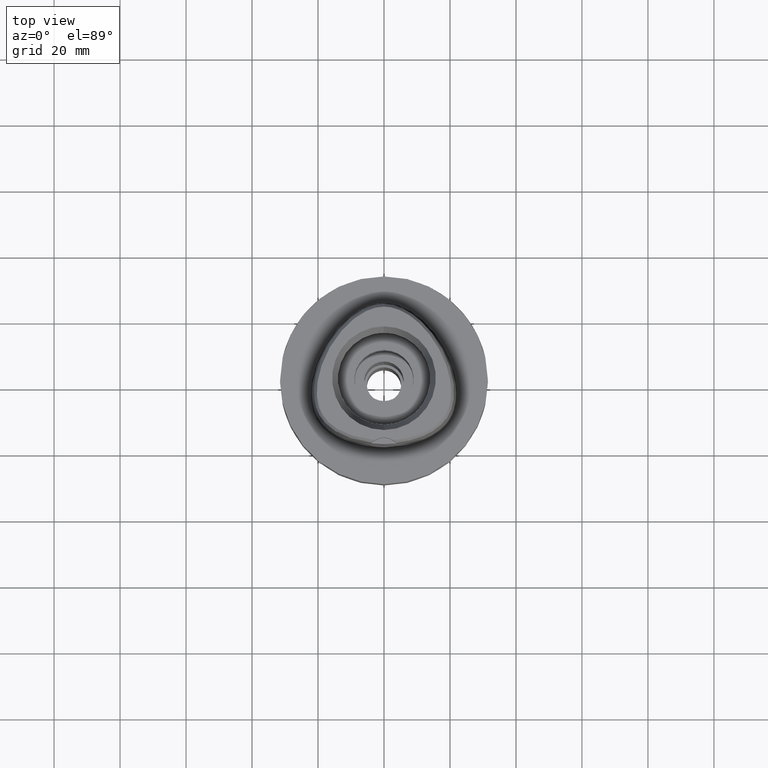
[diagram: clean part render]
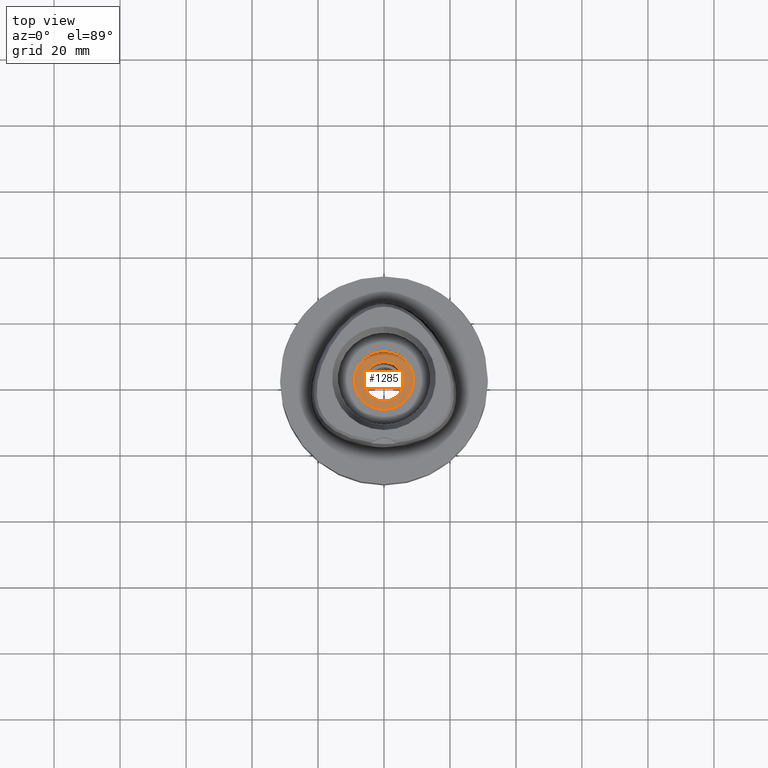
[diagram: same view with one face highlighted and labeled with its STEP entity id]
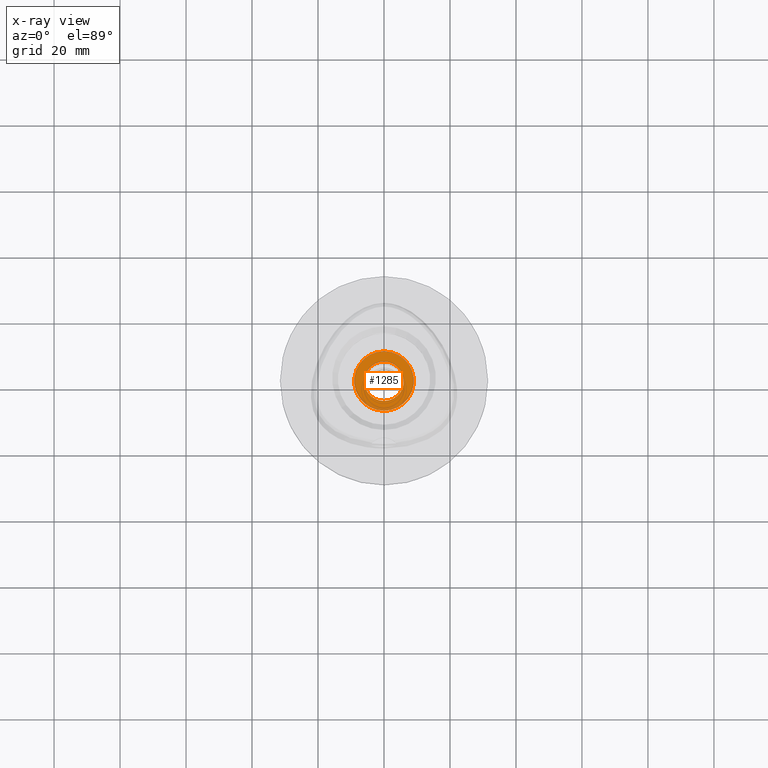
[diagram: x-ray of the same camera — body ghosted, the highlighted face saturated]
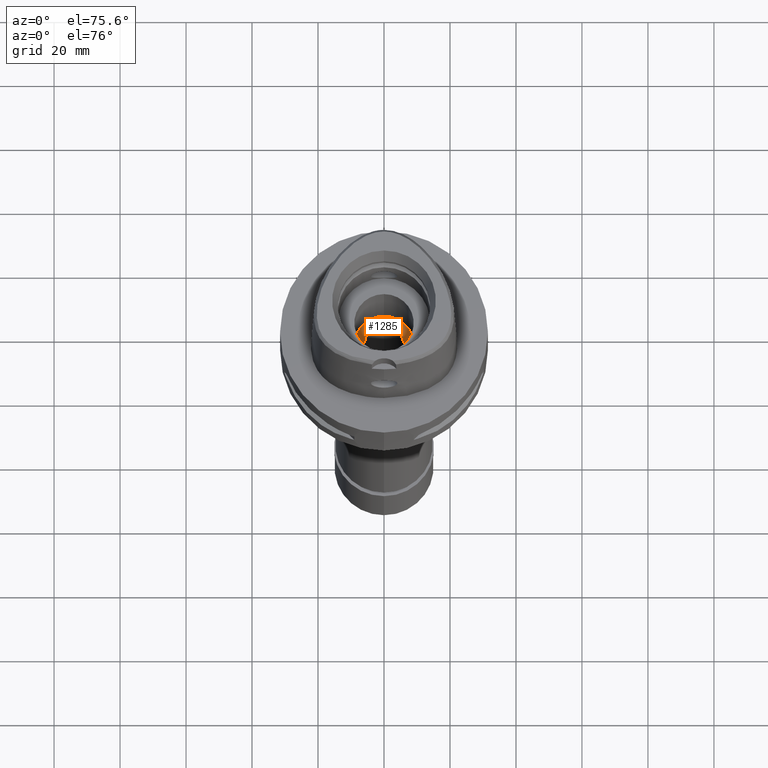
[diagram: same view with one face highlighted and labeled with its STEP entity id]
A machine part, top view. The second image highlights one B-rep face of the part: STEP entity #1285.
The next image is the same camera in x-ray: the body ghosted, the highlighted face saturated — about 6% of this face is hidden behind the body in this view.
A second angle (auxiliary view) of the same face is appended — the face is thin or edge-on in the first view.
In plain terms, the highlighted planar face has unit normal (0, 0, -1).
Its self-contained STEP definition (entity closure, byte-faithful):
#37 = FACE_BOUND ( 'NONE', #3934, .T. ) ;
#150 = CARTESIAN_POINT ( 'NONE',  ( 0.0000000000000000000, 0.0000000000000000000, -16.00000000000000000 ) ) ;
#389 = VERTEX_POINT ( 'NONE', #2401 ) ;
#481 = AXIS2_PLACEMENT_3D ( 'NONE', #1817, #3390, #4200 ) ;
#616 = CARTESIAN_POINT ( 'NONE',  ( 0.0000000000000000000, 0.0000000000000000000, -16.00000000000000000 ) ) ;
#747 = EDGE_CURVE ( 'NONE', #2585, #2912, #1898, .T. ) ;
#768 = DIRECTION ( 'NONE',  ( 0.0000000000000000000, 0.0000000000000000000, -1.000000000000000000 ) ) ;
#838 = DIRECTION ( 'NONE',  ( 0.0000000000000000000, -1.000000000000000000, 0.0000000000000000000 ) ) ;
#877 = AXIS2_PLACEMENT_3D ( 'NONE', #2788, #3191, #838 ) ;
#1184 = EDGE_LOOP ( 'NONE', ( #4132, #2293 ) ) ;
#1226 = DIRECTION ( 'NONE',  ( 0.0000000000000000000, -1.000000000000000000, 0.0000000000000000000 ) ) ;
#1253 = CARTESIAN_POINT ( 'NONE',  ( 0.0000000000000000000, 1.028703311283999754E-14, -16.00000000000000000 ) ) ;
#1285 = ADVANCED_FACE ( 'NONE', ( #2728, #37 ), #3531, .F. ) ;
#1751 = ORIENTED_EDGE ( 'NONE', *, *, #4566, .F. ) ;
#1759 = EDGE_CURVE ( 'NONE', #2016, #389, #2545, .T. ) ;
#1817 = CARTESIAN_POINT ( 'NONE',  ( 0.0000000000000000000, 1.319556926080999853E-14, -16.00000000000000000 ) ) ;
#1898 = CIRCLE ( 'NONE', #4476, 9.000000000000000000 ) ;
#1928 = DIRECTION ( 'NONE',  ( 0.0000000000000000000, -1.000000000000000000, 0.0000000000000000000 ) ) ;
#2016 = VERTEX_POINT ( 'NONE', #3480 ) ;
#2293 = ORIENTED_EDGE ( 'NONE', *, *, #4262, .F. ) ;
#2301 = CARTESIAN_POINT ( 'NONE',  ( 0.0000000000000000000, 9.000000000000000000, -16.00000000000000000 ) ) ;
#2310 = ORIENTED_EDGE ( 'NONE', *, *, #1759, .F. ) ;
#2346 = DIRECTION ( 'NONE',  ( 0.0000000000000000000, 0.0000000000000000000, -1.000000000000000000 ) ) ;
#2401 = CARTESIAN_POINT ( 'NONE',  ( 0.0000000000000000000, -6.000000000000000000, -16.00000000000000000 ) ) ;
#2545 = CIRCLE ( 'NONE', #481, 6.000000000000000000 ) ;
#2565 = CARTESIAN_POINT ( 'NONE',  ( 0.0000000000000000000, -9.000000000000000000, -16.00000000000000000 ) ) ;
#2585 = VERTEX_POINT ( 'NONE', #2301 ) ;
#2719 = CIRCLE ( 'NONE', #4577, 9.000000000000000000 ) ;
#2727 = DIRECTION ( 'NONE',  ( 0.0000000000000000000, 1.000000000000000000, 0.0000000000000000000 ) ) ;
#2728 = FACE_OUTER_BOUND ( 'NONE', #1184, .T. ) ;
#2788 = CARTESIAN_POINT ( 'NONE',  ( 0.0000000000000000000, 1.319556926080999853E-14, -16.00000000000000000 ) ) ;
#2912 = VERTEX_POINT ( 'NONE', #2565 ) ;
#3086 = CIRCLE ( 'NONE', #877, 6.000000000000000000 ) ;
#3191 = DIRECTION ( 'NONE',  ( 0.0000000000000000000, 0.0000000000000000000, 1.000000000000000000 ) ) ;
#3390 = DIRECTION ( 'NONE',  ( 0.0000000000000000000, 0.0000000000000000000, 1.000000000000000000 ) ) ;
#3480 = CARTESIAN_POINT ( 'NONE',  ( 0.0000000000000000000, 6.000000000000000000, -16.00000000000000000 ) ) ;
#3531 = PLANE ( 'NONE',  #3672 ) ;
#3672 = AXIS2_PLACEMENT_3D ( 'NONE', #1253, #2346, #1226 ) ;
#3934 = EDGE_LOOP ( 'NONE', ( #2310, #1751 ) ) ;
#4132 = ORIENTED_EDGE ( 'NONE', *, *, #747, .F. ) ;
#4200 = DIRECTION ( 'NONE',  ( 0.0000000000000000000, 1.000000000000000000, 0.0000000000000000000 ) ) ;
#4262 = EDGE_CURVE ( 'NONE', #2912, #2585, #2719, .T. ) ;
#4476 = AXIS2_PLACEMENT_3D ( 'NONE', #150, #4622, #2727 ) ;
#4566 = EDGE_CURVE ( 'NONE', #389, #2016, #3086, .T. ) ;
#4577 = AXIS2_PLACEMENT_3D ( 'NONE', #616, #768, #1928 ) ;
#4622 = DIRECTION ( 'NONE',  ( 0.0000000000000000000, 0.0000000000000000000, -1.000000000000000000 ) ) ;